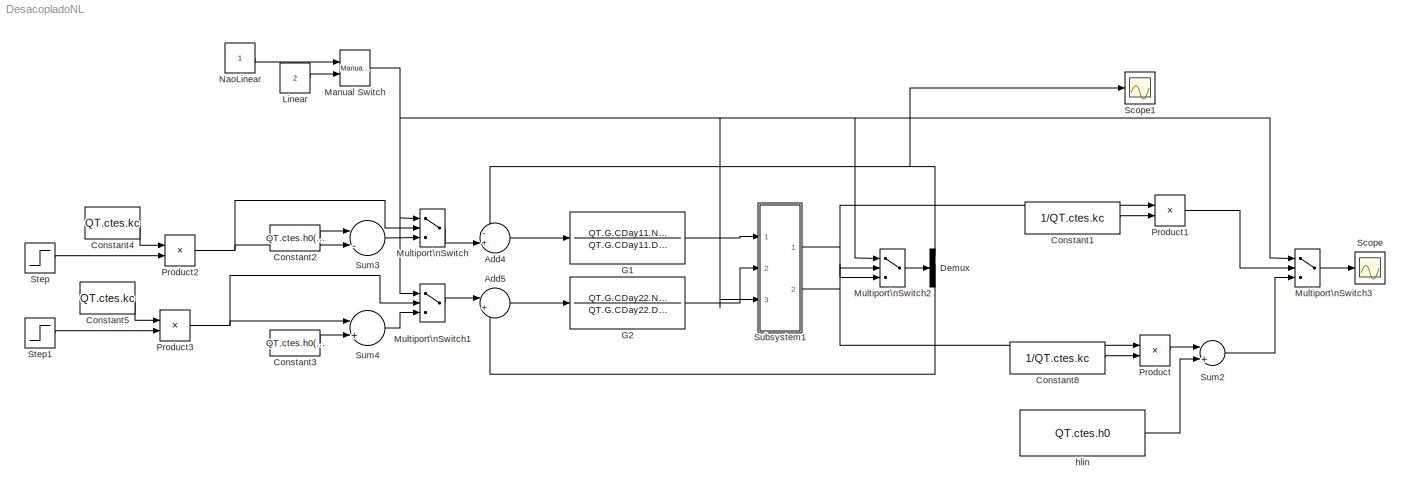
MODEL DesacopladoNL
KIND model
BLOCK [Sum] Add4
  IconShape = round
  InputSameDT = off
  Inputs = -+|
  OutDataTypeStr = Inherit: Inherit via internal rule
  Ports = [2, 1]
  SID = 114
  SaturateOnIntegerOverflow = off
BLOCK [Sum] Add5
  IconShape = round
  InputSameDT = off
  Inputs = |+-
  OutDataTypeStr = Inherit: Inherit via internal rule
  Ports = [2, 1]
  SID = 115
  SaturateOnIntegerOverflow = off
BLOCK [Constant] Constant1
  SID = 154
  Value = 1/QT.ctes.kc
BLOCK [Constant] Constant2
  SID = 204
  Value = QT.ctes.h0(1)*QT.ctes.kc
BLOCK [Constant] Constant3
  SID = 205
  Value = QT.ctes.h0(2)*QT.ctes.kc
BLOCK [Constant] Constant4
  SID = 238
  Value = QT.ctes.kc
BLOCK [Constant] Constant5
  SID = 239
  Value = QT.ctes.kc
BLOCK [Constant] Constant8
  SID = 148
  Value = 1/QT.ctes.kc
BLOCK [Demux] Demux
  DisplayOption = bar
  Ports = [1, 4]
  SID = 106
BLOCK [TransferFcn] G1
  Denominator = QT.G.CDay11.Den
  Numerator = QT.G.CDay11.Num
  SID = 112
BLOCK [TransferFcn] G2
  Denominator = QT.G.CDay22.Den
  Numerator = QT.G.CDay22.Num
  SID = 113
BLOCK [Constant] Linear
  SID = 234
  Value = 2
BLOCK [Reference] Manual Switch  REF=simulink/Signal\nRouting/Manual Switch
  FunctionWithSeparateData = off
  GeneratePreprocessorConditionals = off
  Ports = [2, 1]
  RTWMemSecDataConstants = Inherit from model
  RTWMemSecDataInternal = Inherit from model
  RTWMemSecDataParameters = Inherit from model
  RTWMemSecFuncExecute = Inherit from model
  RTWMemSecFuncInitTerm = Inherit from model
  SID = 232
  ShowPortLabels = FromPortIcon
  SourceBlock = simulink/Signal\nRouting/Manual Switch
  SourceType = Manual Switch
  SystemSampleTime = -1
  action = 0
  sw = 1
  varsize = off
BLOCK [MultiPortSwitch] Multiport\nSwitch
  InputSameDT = off
  Inputs = 2
  Ports = [3, 1]
  SID = 218
  SaturateOnIntegerOverflow = off
  zeroidx = off
BLOCK [MultiPortSwitch] Multiport\nSwitch1
  InputSameDT = off
  Inputs = 2
  Ports = [3, 1]
  SID = 221
  SaturateOnIntegerOverflow = off
  zeroidx = off
BLOCK [MultiPortSwitch] Multiport\nSwitch2
  InputSameDT = off
  Inputs = 2
  Ports = [3, 1]
  SID = 223
  SaturateOnIntegerOverflow = off
  zeroidx = off
BLOCK [MultiPortSwitch] Multiport\nSwitch3
  InputSameDT = off
  Inputs = 2
  Ports = [3, 1]
  SID = 235
  SaturateOnIntegerOverflow = off
  zeroidx = off
BLOCK [Constant] NaoLinear
  SID = 233
BLOCK [Product] Product
  InputSameDT = off
  OutDataTypeStr = Inherit: Inherit via internal rule
  Ports = [2, 1]
  SID = 149
  SaturateOnIntegerOverflow = off
BLOCK [Product] Product1
  InputSameDT = off
  OutDataTypeStr = Inherit: Inherit via internal rule
  Ports = [2, 1]
  SID = 155
  SaturateOnIntegerOverflow = off
BLOCK [Product] Product2
  InputSameDT = off
  OutDataTypeStr = Inherit: Inherit via internal rule
  Ports = [2, 1]
  SID = 237
  SaturateOnIntegerOverflow = off
BLOCK [Product] Product3
  InputSameDT = off
  OutDataTypeStr = Inherit: Inherit via internal rule
  Ports = [2, 1]
  SID = 240
  SaturateOnIntegerOverflow = off
BLOCK [Scope] Scope
  DataFormat = StructureWithTime
  Floating = off
  NumInputPorts = 1
  Ports = [1]
  SID = 236
  SampleTime = 0
  TimeRange = 2000
  YMax = 2.999999999999999e+024
  YMin = -2e+024
BLOCK [Scope] Scope1
  DataFormat = StructureWithTime
  Floating = off
  NumInputPorts = 1
  Ports = [1]
  SID = 259
  SampleTime = 0
  SaveName = ScopeData2
BLOCK [Step] Step
  After = QT.ctes.h0(1)
  Before = QT.ctes.h0(1)
  SID = 208
  SampleTime = 0
  Time = 200
BLOCK [Step] Step1
  After = QT.ctes.h0(2)
  Before = QT.ctes.h0(2)
  SID = 209
  SampleTime = 0
  Time = 1000
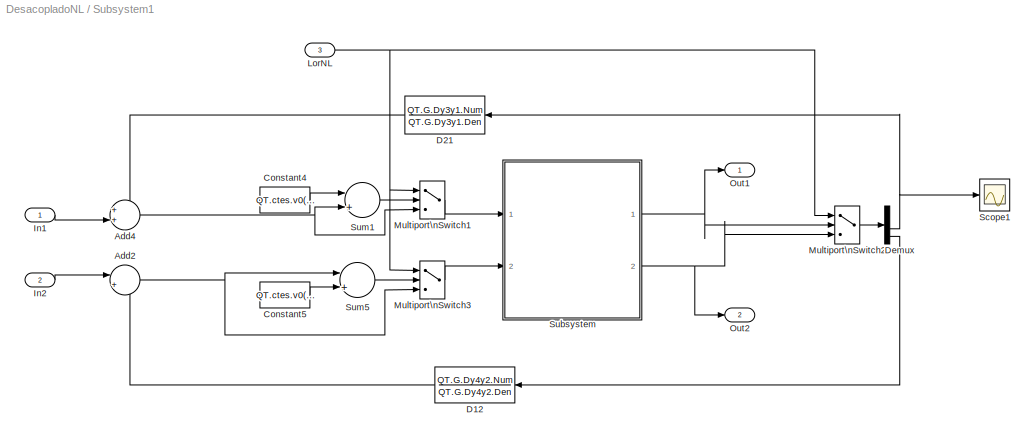
BLOCK [SubSystem] Subsystem1
  FunctionWithSeparateData = off
  MaskHideContents = off
  MinAlgLoopOccurrences = off
  Opaque = off
  Ports = [3, 2]
  PropExecContextOutsideSubsystem = off
  RTWSystemCode = Auto
  RequestExecContextInheritance = off
  SID = 89
BLOCK [Sum] Subsystem1/Add2
  IconShape = round
  InputSameDT = off
  Inputs = |++
  OutDataTypeStr = Inherit: Inherit via internal rule
  Ports = [2, 1]
  SID = 73
  SaturateOnIntegerOverflow = off
BLOCK [Sum] Subsystem1/Add4
  IconShape = round
  InputSameDT = off
  Inputs = ++|
  OutDataTypeStr = Inherit: Inherit via internal rule
  Ports = [2, 1]
  SID = 72
  SaturateOnIntegerOverflow = off
BLOCK [Constant] Subsystem1/Constant4
  SID = 179
  Value = QT.ctes.v0(1)-(QT.ctes.h0(3)*QT.ctes.kc)*(QT.G.Dy3y1.Num(1)/QT.G.Dy3y1.Den(1))
BLOCK [Constant] Subsystem1/Constant5
  SID = 180
  Value = QT.ctes.v0(2)-(QT.ctes.h0(4)*QT.ctes.kc)*(QT.G.Dy4y2.Num(1)/QT.G.Dy4y2.Den(1))
BLOCK [TransferFcn] Subsystem1/D12
  Denominator = QT.G.Dy4y2.Den
  Numerator = QT.G.Dy4y2.Num
  SID = 70
BLOCK [TransferFcn] Subsystem1/D21
  Denominator = QT.G.Dy3y1.Den
  Numerator = QT.G.Dy3y1.Num
  SID = 69
BLOCK [Demux] Subsystem1/Demux
  DisplayOption = bar
  Ports = [1, 4]
  SID = 76
BLOCK [Inport] Subsystem1/In1
  IconDisplay = Port number
  SID = 96
BLOCK [Inport] Subsystem1/In2
  IconDisplay = Port number
  Port = 2
  SID = 97
BLOCK [Inport] Subsystem1/LorNL
  IconDisplay = Port number
  Port = 3
  SID = 229
BLOCK [MultiPortSwitch] Subsystem1/Multiport\nSwitch1
  InputSameDT = off
  Inputs = 2
  Ports = [3, 1]
  SID = 230
  SaturateOnIntegerOverflow = off
  zeroidx = off
BLOCK [MultiPortSwitch] Subsystem1/Multiport\nSwitch2
  InputSameDT = off
  Inputs = 2
  Ports = [3, 1]
  SID = 224
  SaturateOnIntegerOverflow = off
  zeroidx = off
BLOCK [MultiPortSwitch] Subsystem1/Multiport\nSwitch3
  InputSameDT = off
  Inputs = 2
  Ports = [3, 1]
  SID = 231
  SaturateOnIntegerOverflow = off
  zeroidx = off
BLOCK [Outport] Subsystem1/Out1
  IconDisplay = Port number
  SID = 99
BLOCK [Outport] Subsystem1/Out2
  IconDisplay = Port number
  Port = 2
  SID = 100
BLOCK [Scope] Subsystem1/Scope1
  DataFormat = StructureWithTime
  Floating = off
  NumInputPorts = 1
  Ports = [1]
  SID = 245
  SampleTime = 0
  SaveName = ScopeData1
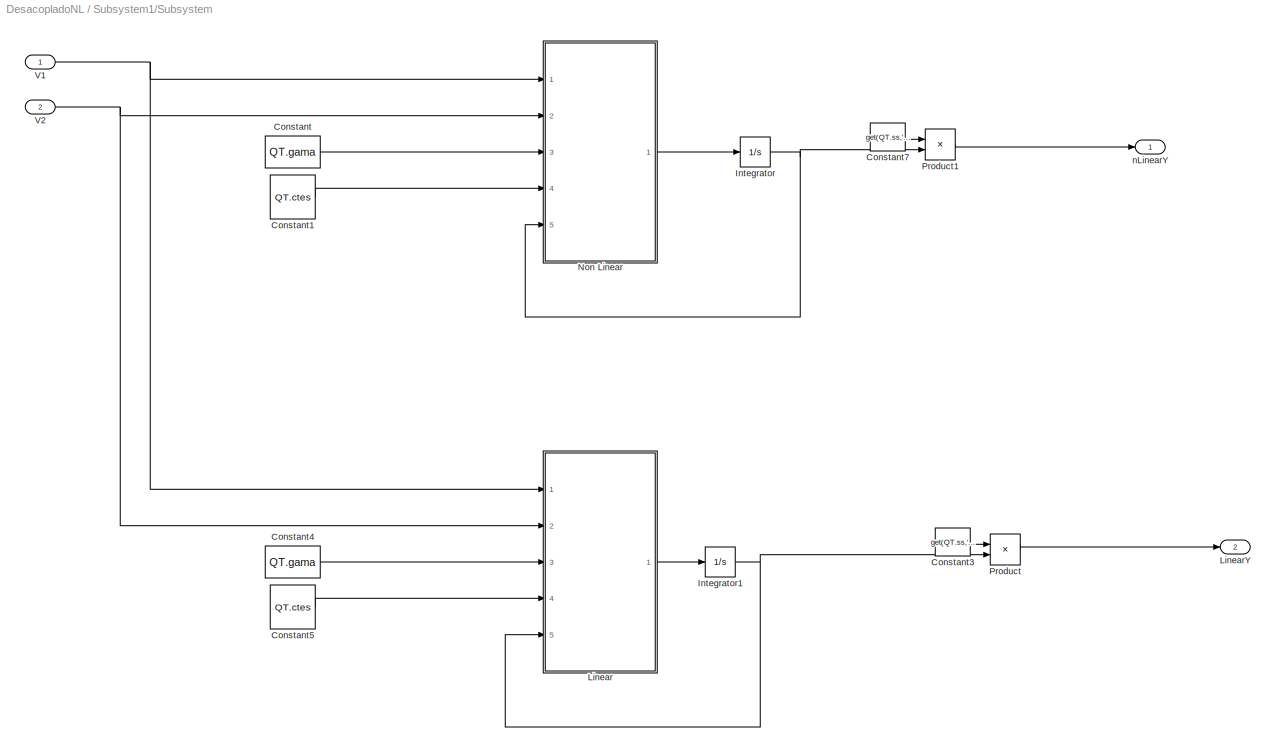
BLOCK [SubSystem] Subsystem1/Subsystem
  FunctionWithSeparateData = off
  MaskHideContents = off
  MinAlgLoopOccurrences = off
  Opaque = off
  Ports = [2, 2]
  PropExecContextOutsideSubsystem = off
  RTWSystemCode = Auto
  RequestExecContextInheritance = off
  SID = 185
BLOCK [Constant] Subsystem1/Subsystem/Constant
  SID = 188
  Value = QT.gama
BLOCK [Constant] Subsystem1/Subsystem/Constant1
  OutDataTypeStr = Bus: slBus1
  SID = 189
  Value = QT.ctes
  VectorParams1D = off
BLOCK [Constant] Subsystem1/Subsystem/Constant3
  SID = 190
  Value = get(QT.ss,'c')
BLOCK [Constant] Subsystem1/Subsystem/Constant4
  SID = 191
  Value = QT.gama
BLOCK [Constant] Subsystem1/Subsystem/Constant5
  OutDataTypeStr = Bus: slBus1
  SID = 192
  Value = QT.ctes
  VectorParams1D = off
BLOCK [Constant] Subsystem1/Subsystem/Constant7
  SID = 193
  Value = get(QT.ss,'c')
BLOCK [Integrator] Subsystem1/Subsystem/Integrator
  InitialCondition = QT.ctes.h0
  Ports = [1, 1]
  SID = 194
BLOCK [Integrator] Subsystem1/Subsystem/Integrator1
  Ports = [1, 1]
  SID = 195
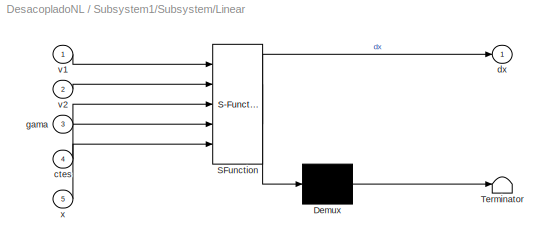
BLOCK [SubSystem] Subsystem1/Subsystem/Linear
  ErrorFcn = Stateflow.Translate.translate
  FunctionWithSeparateData = off
  MaskDescription = Embedded MATLAB block
  MaskDisplay = bgColor = Simulink.Root.ColorString2Rgb(get_param(gcbh, 'BackgroundColor')); image(imread('private/eml_membrane_16.png','png','BackgroundColor',bgColor(1:3)),'center'); disp([10 10 'linsys']);
  MaskHideContents = off
  MaskIconFrame = on
  MaskIconOpaque = off
  MaskIconRotate = none
  MaskIconUnits = normalized
  MaskPortRotate = default
  MaskSelfModifiable = on
  MaskType = Stateflow
  MinAlgLoopOccurrences = off
  Opaque = off
  PermitHierarchicalResolution = ExplicitOnly
  Ports = [5, 1]
  PropExecContextOutsideSubsystem = off
  RTWSystemCode = Auto
  RequestExecContextInheritance = off
  SID = 196
  TreatAsAtomicUnit = on
BLOCK [Demux] Subsystem1/Subsystem/Linear/ Demux 
  Outputs = 1
  Ports = [1, 1]
  SID = 196::15
BLOCK [S-Function] Subsystem1/Subsystem/Linear/ SFunction 
  EnableBusSupport = on
  FunctionName = sf_sfun
  PortCounts = [5 2]
  Ports = [5, 2]
  SID = 196::14
  Tag = Stateflow S-Function DesacopladoNL 1
BLOCK [Terminator] Subsystem1/Subsystem/Linear/ Terminator 
  SID = 196::17
BLOCK [Inport] Subsystem1/Subsystem/Linear/ctes
  IconDisplay = Port number
  Port = 4
  SID = 196::21
BLOCK [Outport] Subsystem1/Subsystem/Linear/dx
  IconDisplay = Port number
  SID = 196::5
BLOCK [Inport] Subsystem1/Subsystem/Linear/gama
  IconDisplay = Port number
  Port = 3
  SID = 196::19
BLOCK [Inport] Subsystem1/Subsystem/Linear/v1
  IconDisplay = Port number
  SID = 196::1
BLOCK [Inport] Subsystem1/Subsystem/Linear/v2
  IconDisplay = Port number
  Port = 2
  SID = 196::18
BLOCK [Inport] Subsystem1/Subsystem/Linear/x
  IconDisplay = Port number
  Port = 5
  SID = 196::20
BLOCK [Outport] Subsystem1/Subsystem/LinearY
  IconDisplay = Port number
  Port = 2
  SID = 201
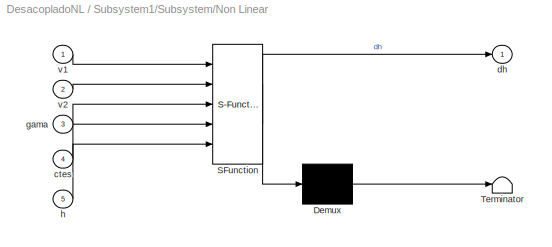
BLOCK [SubSystem] Subsystem1/Subsystem/Non Linear
  ErrorFcn = Stateflow.Translate.translate
  FunctionWithSeparateData = off
  MaskDescription = Embedded MATLAB block
  MaskDisplay = bgColor = Simulink.Root.ColorString2Rgb(get_param(gcbh, 'BackgroundColor')); image(imread('private/eml_membrane_16.png','png','BackgroundColor',bgColor(1:3)),'center'); disp([10 10 'fcn']);
  MaskHideContents = off
  MaskIconFrame = on
  MaskIconOpaque = off
  MaskIconRotate = none
  MaskIconUnits = normalized
  MaskPortRotate = default
  MaskSelfModifiable = on
  MaskType = Stateflow
  MinAlgLoopOccurrences = off
  Opaque = off
  PermitHierarchicalResolution = ExplicitOnly
  Ports = [5, 1]
  PropExecContextOutsideSubsystem = off
  RTWSystemCode = Auto
  RequestExecContextInheritance = off
  SID = 197
  TreatAsAtomicUnit = on
BLOCK [Demux] Subsystem1/Subsystem/Non Linear/ Demux 
  Outputs = 1
  Ports = [1, 1]
  SID = 197::15
BLOCK [S-Function] Subsystem1/Subsystem/Non Linear/ SFunction 
  EnableBusSupport = on
  FunctionName = sf_sfun
  PortCounts = [5 2]
  Ports = [5, 2]
  SID = 197::14
  Tag = Stateflow S-Function DesacopladoNL 2
BLOCK [Terminator] Subsystem1/Subsystem/Non Linear/ Terminator 
  SID = 197::17
BLOCK [Inport] Subsystem1/Subsystem/Non Linear/ctes
  IconDisplay = Port number
  Port = 4
  SID = 197::21
BLOCK [Outport] Subsystem1/Subsystem/Non Linear/dh
  IconDisplay = Port number
  SID = 197::5
BLOCK [Inport] Subsystem1/Subsystem/Non Linear/gama
  IconDisplay = Port number
  Port = 3
  SID = 197::19
BLOCK [Inport] Subsystem1/Subsystem/Non Linear/h
  IconDisplay = Port number
  Port = 5
  SID = 197::20
BLOCK [Inport] Subsystem1/Subsystem/Non Linear/v1
  IconDisplay = Port number
  SID = 197::1
BLOCK [Inport] Subsystem1/Subsystem/Non Linear/v2
  IconDisplay = Port number
  Port = 2
  SID = 197::18
BLOCK [Product] Subsystem1/Subsystem/Product
  InputSameDT = off
  Multiplication = Matrix(*)
  OutDataTypeStr = Inherit: Inherit via internal rule
  Ports = [2, 1]
  SID = 198
  SaturateOnIntegerOverflow = off
BLOCK [Product] Subsystem1/Subsystem/Product1
  InputSameDT = off
  Multiplication = Matrix(*)
  OutDataTypeStr = Inherit: Inherit via internal rule
  Ports = [2, 1]
  SID = 199
  SaturateOnIntegerOverflow = off
BLOCK [Inport] Subsystem1/Subsystem/V1
  IconDisplay = Port number
  SID = 186
BLOCK [Inport] Subsystem1/Subsystem/V2
  IconDisplay = Port number
  Port = 2
  SID = 187
BLOCK [Outport] Subsystem1/Subsystem/nLinearY
  IconDisplay = Port number
  SID = 200
BLOCK [Sum] Subsystem1/Sum1
  InputSameDT = off
  Inputs = |++
  OutDataTypeStr = Inherit: Inherit via internal rule
  Ports = [2, 1]
  SID = 202
  SaturateOnIntegerOverflow = off
BLOCK [Sum] Subsystem1/Sum5
  InputSameDT = off
  Inputs = |++
  OutDataTypeStr = Inherit: Inherit via internal rule
  Ports = [2, 1]
  SID = 203
  SaturateOnIntegerOverflow = off
BLOCK [Sum] Sum2
  InputSameDT = off
  Inputs = |++
  OutDataTypeStr = Inherit: Inherit via internal rule
  Ports = [2, 1]
  SID = 151
  SaturateOnIntegerOverflow = off
BLOCK [Sum] Sum3
  InputSameDT = off
  Inputs = |-+
  OutDataTypeStr = Inherit: Inherit via internal rule
  Ports = [2, 1]
  SID = 210
  SaturateOnIntegerOverflow = off
BLOCK [Sum] Sum4
  InputSameDT = off
  Inputs = |+-
  OutDataTypeStr = Inherit: Inherit via internal rule
  Ports = [2, 1]
  SID = 211
  SaturateOnIntegerOverflow = off
BLOCK [Constant] hlin
  SID = 152
  Value = QT.ctes.h0
LINE Add4:1 -> G1:1
LINE Add5:1 -> G2:1
LINE Constant1:1 -> Product1:2
LINE Constant2:1 -> Sum3:1
LINE Constant3:1 -> Sum4:2
LINE Constant4:1 -> Product2:1
LINE Constant5:1 -> Product3:1
LINE Constant8:1 -> Product:2
NET Demux:1 -> Add4:1, Scope1:1
LINE Demux:2 -> Add5:2
LINE G1:1 -> Subsystem1:1
LINE G2:1 -> Subsystem1:2
LINE Linear:1 -> Manual Switch:2
NET Manual Switch:1 -> Multiport\nSwitch1:1, Multiport\nSwitch2:1, Multiport\nSwitch3:1, Multiport\nSwitch:1, Subsystem1:3
LINE Multiport\nSwitch1:1 -> Add5:1
LINE Multiport\nSwitch2:1 -> Demux:1
LINE Multiport\nSwitch3:1 -> Scope:1
LINE Multiport\nSwitch:1 -> Add4:2
LINE NaoLinear:1 -> Manual Switch:1
LINE Product1:1 -> Multiport\nSwitch3:2
NET Product2:1 -> Multiport\nSwitch:2, Sum3:2
NET Product3:1 -> Multiport\nSwitch1:2, Sum4:1
LINE Product:1 -> Sum2:1
LINE Step1:1 -> Product3:2
LINE Step:1 -> Product2:2
NET Subsystem1/Add2:1 -> Subsystem1/Multiport\nSwitch3:3, Subsystem1/Sum5:1
NET Subsystem1/Add4:1 -> Subsystem1/Multiport\nSwitch1:3, Subsystem1/Sum1:2
LINE Subsystem1/Constant4:1 -> Subsystem1/Sum1:1
LINE Subsystem1/Constant5:1 -> Subsystem1/Sum5:2
LINE Subsystem1/D12:1 -> Subsystem1/Add2:2
LINE Subsystem1/D21:1 -> Subsystem1/Add4:1
NET Subsystem1/Demux:3 -> Subsystem1/D21:1, Subsystem1/Scope1:1
LINE Subsystem1/Demux:4 -> Subsystem1/D12:1
LINE Subsystem1/In1:1 -> Subsystem1/Add4:2
LINE Subsystem1/In2:1 -> Subsystem1/Add2:1
NET Subsystem1/LorNL:1 -> Subsystem1/Multiport\nSwitch1:1, Subsystem1/Multiport\nSwitch2:1, Subsystem1/Multiport\nSwitch3:1
LINE Subsystem1/Multiport\nSwitch1:1 -> Subsystem1/Subsystem:1
LINE Subsystem1/Multiport\nSwitch2:1 -> Subsystem1/Demux:1
LINE Subsystem1/Multiport\nSwitch3:1 -> Subsystem1/Subsystem:2
LINE Subsystem1/Subsystem/Constant1:1 -> Subsystem1/Subsystem/Non Linear:4
LINE Subsystem1/Subsystem/Constant3:1 -> Subsystem1/Subsystem/Product:1
LINE Subsystem1/Subsystem/Constant4:1 -> Subsystem1/Subsystem/Linear:3
LINE Subsystem1/Subsystem/Constant5:1 -> Subsystem1/Subsystem/Linear:4
LINE Subsystem1/Subsystem/Constant7:1 -> Subsystem1/Subsystem/Product1:1
LINE Subsystem1/Subsystem/Constant:1 -> Subsystem1/Subsystem/Non Linear:3
NET Subsystem1/Subsystem/Integrator1:1 -> Subsystem1/Subsystem/Linear:5, Subsystem1/Subsystem/Product:2
NET Subsystem1/Subsystem/Integrator:1 -> Subsystem1/Subsystem/Non Linear:5, Subsystem1/Subsystem/Product1:2
LINE Subsystem1/Subsystem/Linear/ Demux :1 -> Subsystem1/Subsystem/Linear/ Terminator :1
LINE Subsystem1/Subsystem/Linear/ SFunction :1 -> Subsystem1/Subsystem/Linear/ Demux :1
LINE Subsystem1/Subsystem/Linear/ SFunction :2 -> Subsystem1/Subsystem/Linear/dx:1
LINE Subsystem1/Subsystem/Linear/ctes:1 -> Subsystem1/Subsystem/Linear/ SFunction :4
LINE Subsystem1/Subsystem/Linear/gama:1 -> Subsystem1/Subsystem/Linear/ SFunction :3
LINE Subsystem1/Subsystem/Linear/v1:1 -> Subsystem1/Subsystem/Linear/ SFunction :1
LINE Subsystem1/Subsystem/Linear/v2:1 -> Subsystem1/Subsystem/Linear/ SFunction :2
LINE Subsystem1/Subsystem/Linear/x:1 -> Subsystem1/Subsystem/Linear/ SFunction :5
LINE Subsystem1/Subsystem/Linear:1 -> Subsystem1/Subsystem/Integrator1:1
LINE Subsystem1/Subsystem/Non Linear/ Demux :1 -> Subsystem1/Subsystem/Non Linear/ Terminator :1
LINE Subsystem1/Subsystem/Non Linear/ SFunction :1 -> Subsystem1/Subsystem/Non Linear/ Demux :1
LINE Subsystem1/Subsystem/Non Linear/ SFunction :2 -> Subsystem1/Subsystem/Non Linear/dh:1
LINE Subsystem1/Subsystem/Non Linear/ctes:1 -> Subsystem1/Subsystem/Non Linear/ SFunction :4
LINE Subsystem1/Subsystem/Non Linear/gama:1 -> Subsystem1/Subsystem/Non Linear/ SFunction :3
LINE Subsystem1/Subsystem/Non Linear/h:1 -> Subsystem1/Subsystem/Non Linear/ SFunction :5
LINE Subsystem1/Subsystem/Non Linear/v1:1 -> Subsystem1/Subsystem/Non Linear/ SFunction :1
LINE Subsystem1/Subsystem/Non Linear/v2:1 -> Subsystem1/Subsystem/Non Linear/ SFunction :2
LINE Subsystem1/Subsystem/Non Linear:1 -> Subsystem1/Subsystem/Integrator:1
LINE Subsystem1/Subsystem/Product1:1 -> Subsystem1/Subsystem/nLinearY:1
LINE Subsystem1/Subsystem/Product:1 -> Subsystem1/Subsystem/LinearY:1
NET Subsystem1/Subsystem/V1:1 -> Subsystem1/Subsystem/Linear:1, Subsystem1/Subsystem/Non Linear:1
NET Subsystem1/Subsystem/V2:1 -> Subsystem1/Subsystem/Linear:2, Subsystem1/Subsystem/Non Linear:2
NET Subsystem1/Subsystem:1 -> Subsystem1/Multiport\nSwitch2:2, Subsystem1/Out1:1
NET Subsystem1/Subsystem:2 -> Subsystem1/Multiport\nSwitch2:3, Subsystem1/Out2:1
LINE Subsystem1/Sum1:1 -> Subsystem1/Multiport\nSwitch1:2
LINE Subsystem1/Sum5:1 -> Subsystem1/Multiport\nSwitch3:2
NET Subsystem1:1 -> Multiport\nSwitch2:2, Product1:1
NET Subsystem1:2 -> Multiport\nSwitch2:3, Product:1
LINE Sum2:1 -> Multiport\nSwitch3:3
LINE Sum3:1 -> Multiport\nSwitch:3
LINE Sum4:1 -> Multiport\nSwitch1:3
LINE hlin:1 -> Sum2:2
note: NET lines group one-source signal fan-out (src -> all destinations, sorted); 1:1 wires keep LINE
CHART Subsystem1/Subsystem/Linear states=1 transitions=1
  STATE_LABEL 'eML_blk_kernel()'
CHART Subsystem1/Subsystem/Non Linear states=1 transitions=1
  STATE_LABEL 'eML_blk_kernel()'
